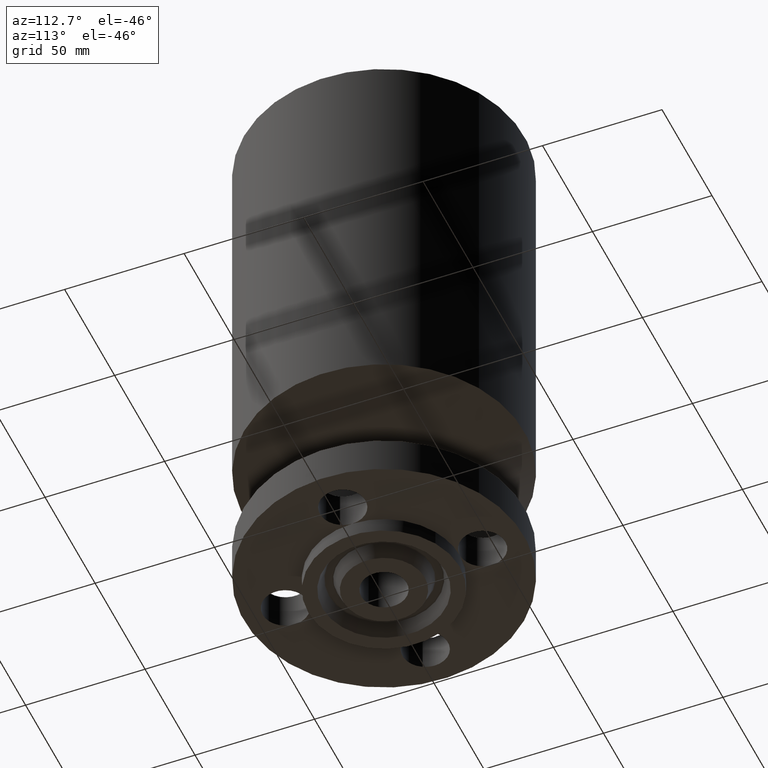
[diagram: clean part render]
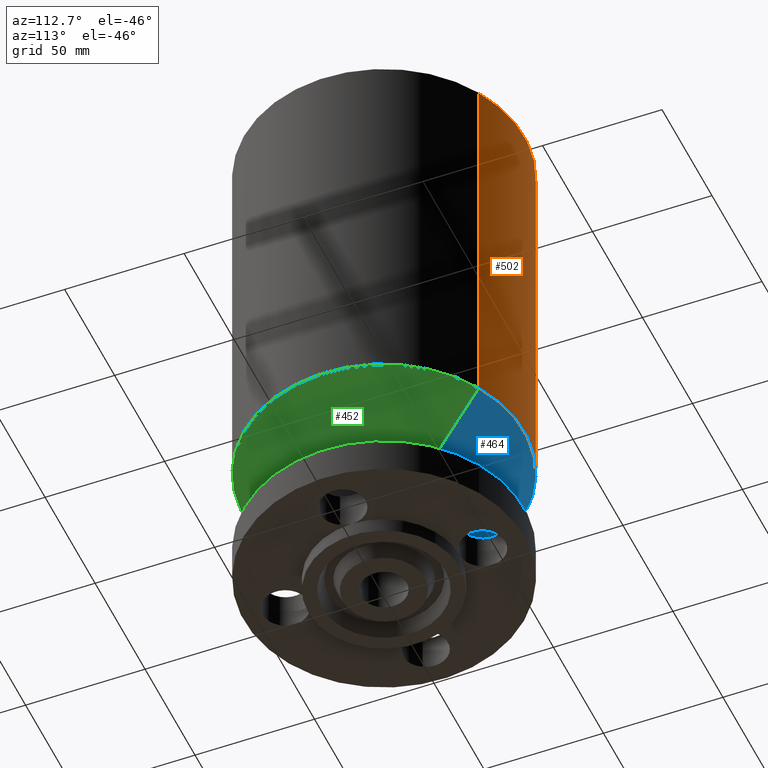
[diagram: same view with three faces highlighted in distinct colors, each labeled with its STEP entity id]
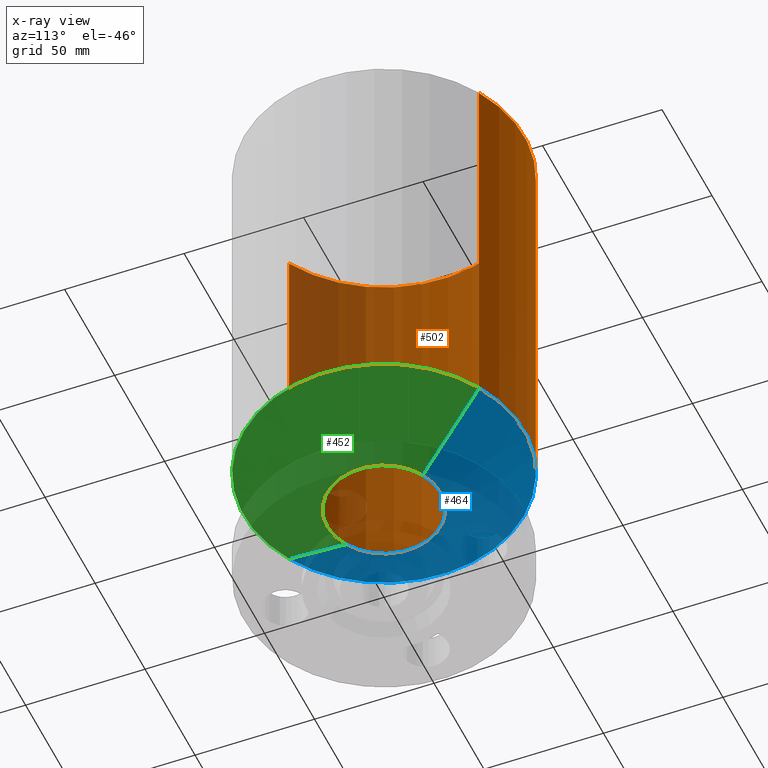
[diagram: x-ray of the same camera — body ghosted, the three highlighted faces saturated]
A machine part, auxiliary view with three faces highlighted in distinct colors.
The next image is the same camera in x-ray (body ghosted, the three faces saturated) — at least one of them is partly hidden behind the body in this view.
Their STEP definitions:

[orange] entity #502 — the highlighted cylindrical surface (partial cylindrical patch) has radius 58.674 mm, axis along (0, 0, -1).
#239=AXIS2_PLACEMENT_3D('Cylinder Axis2P3D',#236,#237,#238) ;
#455=AXIS2_PLACEMENT_3D('Circle Axis2P3D',#453,#454,$) ;
#493=AXIS2_PLACEMENT_3D('Circle Axis2P3D',#491,#492,$) ;
#236=CARTESIAN_POINT('Axis2P3D Location',(0.,0.,4.25000000002)) ;
#431=CARTESIAN_POINT('Vertex',(1.10747299418,2.02721571797,2.2909698688)) ;
#438=CARTESIAN_POINT('Vertex',(-1.10747299418,-2.02721571797,2.2909698688)) ;
#453=CARTESIAN_POINT('Axis2P3D Location',(0.,0.,2.2909698688)) ;
#465=CARTESIAN_POINT('Line Origine',(1.10747299418,2.02721571797,5.52048493442)) ;
#469=CARTESIAN_POINT('Vertex',(1.10747299418,2.02721571797,8.75000000003)) ;
#476=CARTESIAN_POINT('Vertex',(-1.10747299418,-2.02721571797,8.75000000003)) ;
#479=CARTESIAN_POINT('Line Origine',(-1.10747299418,-2.02721571797,5.52048493442)) ;
#491=CARTESIAN_POINT('Axis2P3D Location',(0.,0.,8.75000000003)) ;
#237=DIRECTION('Axis2P3D Direction',(0.,0.,-0.0393700787402)) ;
#238=DIRECTION('Axis2P3D XDirection',(-0.0188750212049,-0.0345504945626,0.)) ;
#454=DIRECTION('Axis2P3D Direction',(-0.,0.,0.0393700787402)) ;
#466=DIRECTION('Vector Direction',(0.,0.,-0.0393700787402)) ;
#480=DIRECTION('Vector Direction',(0.,0.,-0.0393700787402)) ;
#492=DIRECTION('Axis2P3D Direction',(0.,0.,-0.0393700787402)) ;
#467=VECTOR('Line Direction',#466,0.0393700787402) ;
#481=VECTOR('Line Direction',#480,0.0393700787402) ;
#497=ORIENTED_EDGE('',*,*,#457,.F.) ;
#498=ORIENTED_EDGE('',*,*,#483,.T.) ;
#499=ORIENTED_EDGE('',*,*,#495,.T.) ;
#500=ORIENTED_EDGE('',*,*,#471,.F.) ;
#502=ADVANCED_FACE('PartBody',(#501),#240,.T.) ;
#456=CIRCLE('generated circle',#455,2.31000000001) ;
#494=CIRCLE('generated circle',#493,2.31000000001) ;
#240=CYLINDRICAL_SURFACE('generated cylinder',#239,2.31000000001) ;
#457=EDGE_CURVE('',#439,#432,#456,.F.) ;
#471=EDGE_CURVE('',#432,#470,#468,.F.) ;
#483=EDGE_CURVE('',#439,#477,#482,.F.) ;
#495=EDGE_CURVE('',#477,#470,#494,.T.) ;
#496=EDGE_LOOP('',(#497,#498,#499,#500)) ;
#501=FACE_OUTER_BOUND('',#496,.T.) ;
#468=LINE('Line',#465,#467) ;
#482=LINE('Line',#479,#481) ;
#432=VERTEX_POINT('',#431) ;
#439=VERTEX_POINT('',#438) ;
#470=VERTEX_POINT('',#469) ;
#477=VERTEX_POINT('',#476) ;

[blue] entity #464 — the highlighted conical surface has half-angle 60 deg.
#412=AXIS2_PLACEMENT_3D('Circle Axis2P3D',#410,#411,$) ;
#425=AXIS2_PLACEMENT_3D('Cone Axis2P3D',#422,#423,#424) ;
#455=AXIS2_PLACEMENT_3D('Circle Axis2P3D',#453,#454,$) ;
#388=CARTESIAN_POINT('Vertex',(0.45066000629,0.82492760818,1.50000000001)) ;
#395=CARTESIAN_POINT('Vertex',(-0.45066000629,-0.82492760818,1.50000000001)) ;
#410=CARTESIAN_POINT('Axis2P3D Location',(0.,0.,1.50000000001)) ;
#422=CARTESIAN_POINT('Axis2P3D Location',(0.,0.,1.50000000001)) ;
#427=CARTESIAN_POINT('Line Origine',(0.779066500235,1.42607166308,1.8954849344)) ;
#431=CARTESIAN_POINT('Vertex',(1.10747299418,2.02721571797,2.2909698688)) ;
#438=CARTESIAN_POINT('Vertex',(-1.10747299418,-2.02721571797,2.2909698688)) ;
#441=CARTESIAN_POINT('Line Origine',(-0.779066500235,-1.42607166308,1.8954849344)) ;
#453=CARTESIAN_POINT('Axis2P3D Location',(0.,0.,2.2909698688)) ;
#411=DIRECTION('Axis2P3D Direction',(0.,0.,-0.0393700787402)) ;
#423=DIRECTION('Axis2P3D Direction',(-0.,-0.,0.0393700787402)) ;
#424=DIRECTION('Axis2P3D XDirection',(0.0188750212049,0.0345504945626,0.)) ;
#428=DIRECTION('Vector Direction',(0.0163462478604,0.0299216060045,0.0196850393701)) ;
#442=DIRECTION('Vector Direction',(-0.0163462478604,-0.0299216060045,0.0196850393701)) ;
#454=DIRECTION('Axis2P3D Direction',(-0.,0.,0.0393700787402)) ;
#429=VECTOR('Line Direction',#428,0.0393700787402) ;
#443=VECTOR('Line Direction',#442,0.0393700787402) ;
#459=ORIENTED_EDGE('',*,*,#414,.F.) ;
#460=ORIENTED_EDGE('',*,*,#445,.T.) ;
#461=ORIENTED_EDGE('',*,*,#457,.T.) ;
#462=ORIENTED_EDGE('',*,*,#433,.F.) ;
#464=ADVANCED_FACE('PartBody',(#463),#426,.T.) ;
#413=CIRCLE('generated circle',#412,0.940000000004) ;
#456=CIRCLE('generated circle',#455,2.31000000001) ;
#426=CONICAL_SURFACE('Cone',#425,0.940000000004,1.0471975512) ;
#414=EDGE_CURVE('',#396,#389,#413,.T.) ;
#433=EDGE_CURVE('',#389,#432,#430,.T.) ;
#445=EDGE_CURVE('',#396,#439,#444,.T.) ;
#457=EDGE_CURVE('',#439,#432,#456,.F.) ;
#458=EDGE_LOOP('',(#459,#460,#461,#462)) ;
#463=FACE_OUTER_BOUND('',#458,.T.) ;
#430=LINE('Line',#427,#429) ;
#444=LINE('Line',#441,#443) ;
#389=VERTEX_POINT('',#388) ;
#396=VERTEX_POINT('',#395) ;
#432=VERTEX_POINT('',#431) ;
#439=VERTEX_POINT('',#438) ;

[green] entity #452 — the highlighted conical surface has half-angle 60 deg.
#393=AXIS2_PLACEMENT_3D('Circle Axis2P3D',#391,#392,$) ;
#425=AXIS2_PLACEMENT_3D('Cone Axis2P3D',#422,#423,#424) ;
#436=AXIS2_PLACEMENT_3D('Circle Axis2P3D',#434,#435,$) ;
#388=CARTESIAN_POINT('Vertex',(0.45066000629,0.82492760818,1.50000000001)) ;
#391=CARTESIAN_POINT('Axis2P3D Location',(0.,0.,1.50000000001)) ;
#395=CARTESIAN_POINT('Vertex',(-0.45066000629,-0.82492760818,1.50000000001)) ;
#422=CARTESIAN_POINT('Axis2P3D Location',(0.,0.,1.50000000001)) ;
#427=CARTESIAN_POINT('Line Origine',(0.779066500235,1.42607166308,1.8954849344)) ;
#431=CARTESIAN_POINT('Vertex',(1.10747299418,2.02721571797,2.2909698688)) ;
#434=CARTESIAN_POINT('Axis2P3D Location',(0.,0.,2.2909698688)) ;
#438=CARTESIAN_POINT('Vertex',(-1.10747299418,-2.02721571797,2.2909698688)) ;
#441=CARTESIAN_POINT('Line Origine',(-0.779066500235,-1.42607166308,1.8954849344)) ;
#392=DIRECTION('Axis2P3D Direction',(0.,0.,-0.0393700787402)) ;
#423=DIRECTION('Axis2P3D Direction',(-0.,-0.,0.0393700787402)) ;
#424=DIRECTION('Axis2P3D XDirection',(0.0188750212049,0.0345504945626,0.)) ;
#428=DIRECTION('Vector Direction',(0.0163462478604,0.0299216060045,0.0196850393701)) ;
#435=DIRECTION('Axis2P3D Direction',(-0.,0.,0.0393700787402)) ;
#442=DIRECTION('Vector Direction',(-0.0163462478604,-0.0299216060045,0.0196850393701)) ;
#429=VECTOR('Line Direction',#428,0.0393700787402) ;
#443=VECTOR('Line Direction',#442,0.0393700787402) ;
#447=ORIENTED_EDGE('',*,*,#397,.F.) ;
#448=ORIENTED_EDGE('',*,*,#433,.T.) ;
#449=ORIENTED_EDGE('',*,*,#440,.T.) ;
#450=ORIENTED_EDGE('',*,*,#445,.F.) ;
#452=ADVANCED_FACE('PartBody',(#451),#426,.T.) ;
#394=CIRCLE('generated circle',#393,0.940000000004) ;
#437=CIRCLE('generated circle',#436,2.31000000001) ;
#426=CONICAL_SURFACE('Cone',#425,0.940000000004,1.0471975512) ;
#397=EDGE_CURVE('',#389,#396,#394,.T.) ;
#433=EDGE_CURVE('',#389,#432,#430,.T.) ;
#440=EDGE_CURVE('',#432,#439,#437,.F.) ;
#445=EDGE_CURVE('',#396,#439,#444,.T.) ;
#446=EDGE_LOOP('',(#447,#448,#449,#450)) ;
#451=FACE_OUTER_BOUND('',#446,.T.) ;
#430=LINE('Line',#427,#429) ;
#444=LINE('Line',#441,#443) ;
#389=VERTEX_POINT('',#388) ;
#396=VERTEX_POINT('',#395) ;
#432=VERTEX_POINT('',#431) ;
#439=VERTEX_POINT('',#438) ;